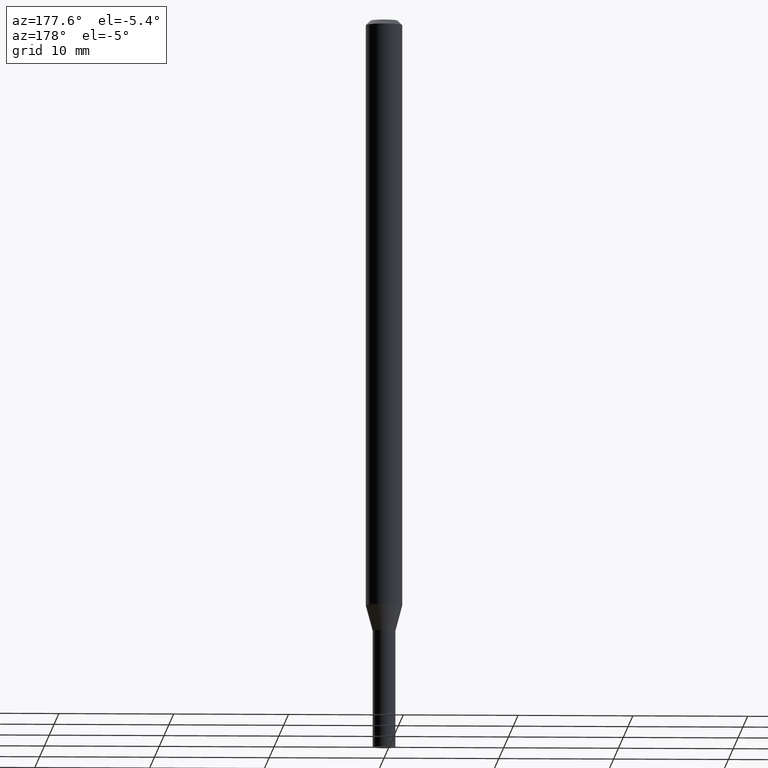
[diagram: clean part render]
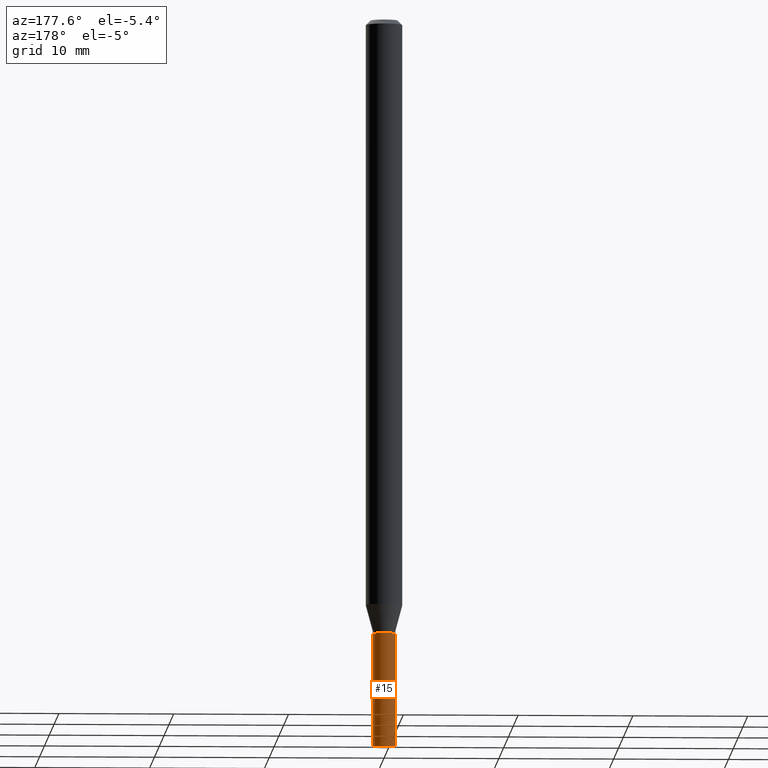
[diagram: same view with one face highlighted and labeled with its STEP entity id]
A machine part, auxiliary view. The second image highlights one B-rep face of the part: STEP entity #15.
In plain terms, the highlighted cylindrical surface (edge-blend (fillet) strip) has radius 0.9906 mm, axis along (-0, 0, 1).
Its self-contained STEP definition (entity closure, byte-faithful):
#15 = ADVANCED_FACE ( 'NONE', ( #382 ), #203, .T. ) ;
#16 = VECTOR ( 'NONE', #465, 39.37007874015748143 ) ;
#20 = CARTESIAN_POINT ( 'NONE',  ( 0.03899999999999999994, -2.723355444297643682E-16, 1.901708942560414931E-30 ) ) ;
#23 = DIRECTION ( 'NONE',  ( -2.445468806185136597E-29, 3.491481338843145583E-15, 1.000000000000000000 ) ) ;
#26 = CARTESIAN_POINT ( 'NONE',  ( 6.113672015462842613E-29, -8.728703347107864943E-15, -2.500000000000000000 ) ) ;
#53 = ORIENTED_EDGE ( 'NONE', *, *, #438, .F. ) ;
#57 = CARTESIAN_POINT ( 'NONE',  ( 0.000000000000000000, 0.000000000000000000, 0.000000000000000000 ) ) ;
#79 = CARTESIAN_POINT ( 'NONE',  ( 0.03899999999999999994, -7.639361169388800962E-15, -2.110000000000000320 ) ) ;
#82 = AXIS2_PLACEMENT_3D ( 'NONE', #57, #23, #132 ) ;
#126 = DIRECTION ( 'NONE',  ( 1.000000000000000000, -6.982962677686258033E-15, 0.000000000000000000 ) ) ;
#127 = VERTEX_POINT ( 'NONE', #140 ) ;
#132 = DIRECTION ( 'NONE',  ( 1.000000000000000000, -6.982962677686265922E-15, 4.876176775795935793E-29 ) ) ;
#140 = CARTESIAN_POINT ( 'NONE',  ( -0.03899999999999999994, -7.770752819087011622E-15, -2.500000000000000000 ) ) ;
#144 = CIRCLE ( 'NONE', #164, 0.03899999999999999994 ) ;
#156 = CARTESIAN_POINT ( 'NONE',  ( 5.159939181050639071E-29, -7.367025624959036939E-15, -2.110000000000000320 ) ) ;
#164 = AXIS2_PLACEMENT_3D ( 'NONE', #26, #165, #199 ) ;
#165 = DIRECTION ( 'NONE',  ( -2.445468806185136597E-29, 3.491481338843145583E-15, 1.000000000000000000 ) ) ;
#166 = DIRECTION ( 'NONE',  ( -2.445468806185136597E-29, 3.491481338843145583E-15, 1.000000000000000000 ) ) ;
#171 = CARTESIAN_POINT ( 'NONE',  ( -0.03899999999999999994, -7.770752819087011622E-15, -2.110000000000000320 ) ) ;
#184 = EDGE_CURVE ( 'NONE', #127, #406, #218, .T. ) ;
#194 = ORIENTED_EDGE ( 'NONE', *, *, #255, .F. ) ;
#199 = DIRECTION ( 'NONE',  ( 1.000000000000000000, -6.982962677686283277E-15, 0.000000000000000000 ) ) ;
#203 = CYLINDRICAL_SURFACE ( 'NONE', #82, 0.03899999999999999994 ) ;
#218 = LINE ( 'NONE', #283, #16 ) ;
#224 = EDGE_LOOP ( 'NONE', ( #264, #291, #194, #53 ) ) ;
#232 = LINE ( 'NONE', #20, #327 ) ;
#255 = EDGE_CURVE ( 'NONE', #261, #406, #377, .T. ) ;
#261 = VERTEX_POINT ( 'NONE', #79 ) ;
#264 = ORIENTED_EDGE ( 'NONE', *, *, #366, .T. ) ;
#271 = DIRECTION ( 'NONE',  ( -2.445468806185136877E-29, 3.491481338843145188E-15, 1.000000000000000000 ) ) ;
#283 = CARTESIAN_POINT ( 'NONE',  ( -0.03899999999999999994, 2.771116669464390721E-16, -1.918384685199413078E-30 ) ) ;
#290 = VERTEX_POINT ( 'NONE', #337 ) ;
#291 = ORIENTED_EDGE ( 'NONE', *, *, #184, .T. ) ;
#327 = VECTOR ( 'NONE', #271, 39.37007874015748143 ) ;
#337 = CARTESIAN_POINT ( 'NONE',  ( 0.03899999999999999994, -9.001038891537628966E-15, -2.500000000000000000 ) ) ;
#353 = AXIS2_PLACEMENT_3D ( 'NONE', #156, #166, #126 ) ;
#366 = EDGE_CURVE ( 'NONE', #290, #127, #144, .T. ) ;
#377 = CIRCLE ( 'NONE', #353, 0.03899999999999999994 ) ;
#382 = FACE_OUTER_BOUND ( 'NONE', #224, .T. ) ;
#406 = VERTEX_POINT ( 'NONE', #171 ) ;
#438 = EDGE_CURVE ( 'NONE', #290, #261, #232, .T. ) ;
#465 = DIRECTION ( 'NONE',  ( -2.445468806185136877E-29, 3.491481338843145188E-15, 1.000000000000000000 ) ) ;